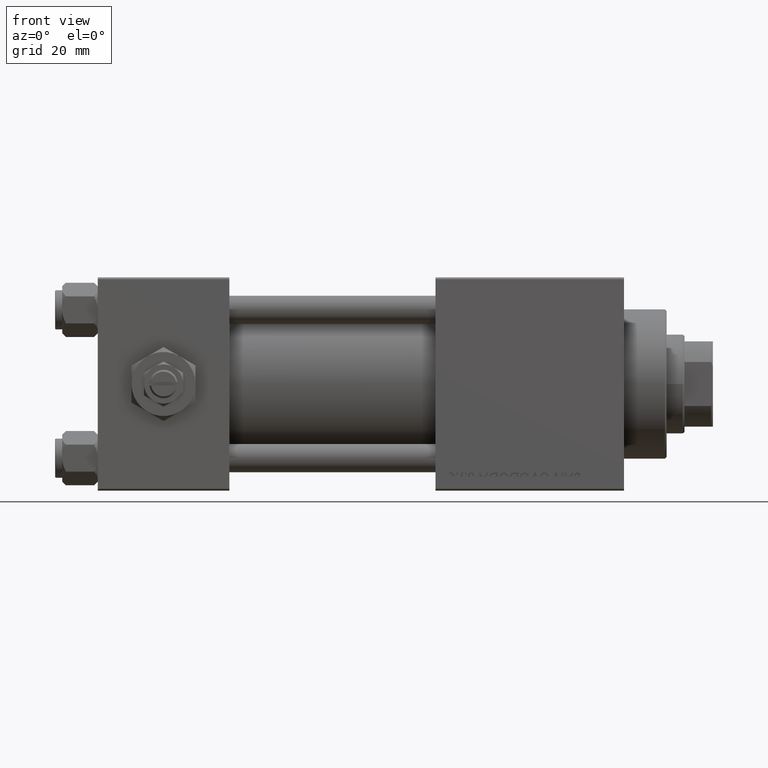
[diagram: clean part render]
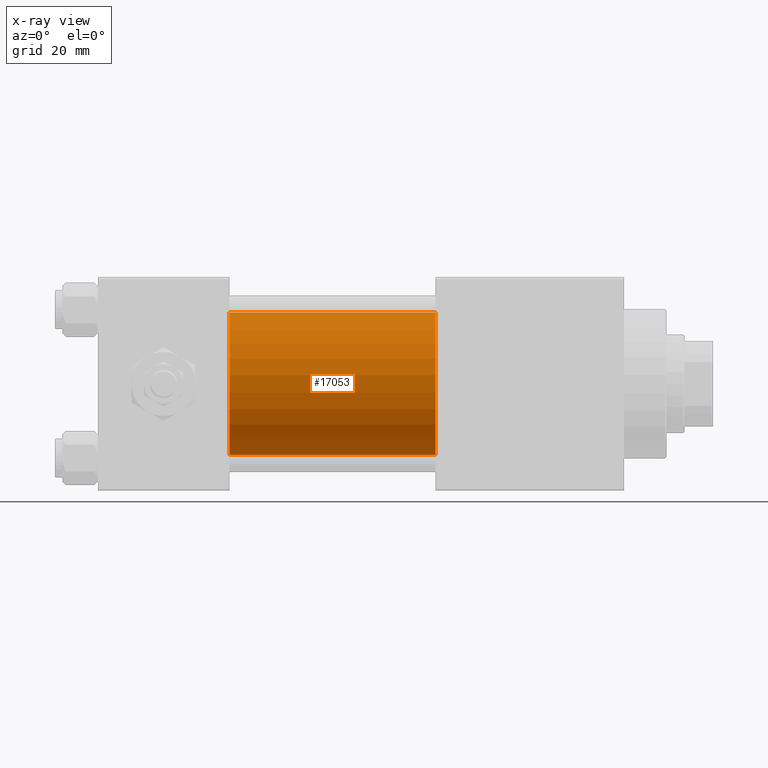
[diagram: x-ray — body ghosted, one internal face saturated and labeled with its STEP entity id]
A machine part, front view, then the same camera in x-ray: the body is ghosted and one INTERNAL B-rep face — a face not visible from any outside direction — is saturated and labeled: STEP entity #17053.
In plain terms, the highlighted cylindrical surface (partial cylindrical patch) has radius 20 mm, axis along (-1, -0, -0).
Its self-contained STEP definition (entity closure, byte-faithful):
#1508 = CARTESIAN_POINT ( 'NONE',  ( 95.00000000000000000, -1.527916156705046464E-16, -20.00000000000000000 ) ) ;
#2756 = DIRECTION ( 'NONE',  ( 0.000000000000000000, 0.000000000000000000, -1.000000000000000000 ) ) ;
#3105 = CARTESIAN_POINT ( 'NONE',  ( 95.00000000000000000, -2.602085213965210642E-15, 0.000000000000000000 ) ) ;
#4491 = DIRECTION ( 'NONE',  ( 0.000000000000000000, 0.000000000000000000, -1.000000000000000000 ) ) ;
#5393 = CIRCLE ( 'NONE', #29699, 20.00000000000000000 ) ;
#9278 = VERTEX_POINT ( 'NONE', #42168 ) ;
#9781 = ORIENTED_EDGE ( 'NONE', *, *, #16120, .F. ) ;
#16120 = EDGE_CURVE ( 'NONE', #23817, #9278, #40197, .T. ) ;
#17053 = ADVANCED_FACE ( 'NONE', ( #51411 ), #23040, .F. ) ;
#18790 = CARTESIAN_POINT ( 'NONE',  ( 95.00000000000000000, -2.602085213965210642E-15, 20.00000000000000000 ) ) ;
#19349 = CARTESIAN_POINT ( 'NONE',  ( 95.00000000000000000, -2.602085213965210642E-15, 20.00000000000000000 ) ) ;
#20911 = AXIS2_PLACEMENT_3D ( 'NONE', #3105, #51669, #39321 ) ;
#23040 = CYLINDRICAL_SURFACE ( 'NONE', #20911, 20.00000000000000000 ) ;
#23817 = VERTEX_POINT ( 'NONE', #35427 ) ;
#25501 = VECTOR ( 'NONE', #43503, 1000.000000000000000 ) ;
#25896 = LINE ( 'NONE', #1508, #31929 ) ;
#26287 = VERTEX_POINT ( 'NONE', #29572 ) ;
#28765 = CARTESIAN_POINT ( 'NONE',  ( 95.00000000000000000, -2.602085213965210642E-15, 0.000000000000000000 ) ) ;
#29572 = CARTESIAN_POINT ( 'NONE',  ( 95.00000000000000000, -1.527916156705046464E-16, -20.00000000000000000 ) ) ;
#29676 = ORIENTED_EDGE ( 'NONE', *, *, #42278, .T. ) ;
#29699 = AXIS2_PLACEMENT_3D ( 'NONE', #28765, #44808, #2756 ) ;
#31929 = VECTOR ( 'NONE', #50071, 1000.000000000000000 ) ;
#35403 = EDGE_CURVE ( 'NONE', #26287, #9278, #25896, .T. ) ;
#35427 = CARTESIAN_POINT ( 'NONE',  ( 37.00000000000000000, -2.602085213965210642E-15, 20.00000000000000000 ) ) ;
#35501 = VERTEX_POINT ( 'NONE', #18790 ) ;
#36122 = LINE ( 'NONE', #19349, #25501 ) ;
#36828 = AXIS2_PLACEMENT_3D ( 'NONE', #40438, #48856, #4491 ) ;
#38424 = ORIENTED_EDGE ( 'NONE', *, *, #35403, .T. ) ;
#39321 = DIRECTION ( 'NONE',  ( 0.000000000000000000, 0.000000000000000000, 1.000000000000000000 ) ) ;
#40197 = CIRCLE ( 'NONE', #36828, 20.00000000000000000 ) ;
#40438 = CARTESIAN_POINT ( 'NONE',  ( 37.00000000000000000, -2.602085213965210642E-15, 0.000000000000000000 ) ) ;
#42109 = EDGE_CURVE ( 'NONE', #35501, #23817, #36122, .T. ) ;
#42168 = CARTESIAN_POINT ( 'NONE',  ( 37.00000000000000000, -1.527916156705046464E-16, -20.00000000000000000 ) ) ;
#42278 = EDGE_CURVE ( 'NONE', #35501, #26287, #5393, .T. ) ;
#43503 = DIRECTION ( 'NONE',  ( -1.000000000000000000, -0.000000000000000000, -0.000000000000000000 ) ) ;
#44808 = DIRECTION ( 'NONE',  ( 1.000000000000000000, 0.000000000000000000, 0.000000000000000000 ) ) ;
#46864 = EDGE_LOOP ( 'NONE', ( #29676, #38424, #9781, #50792 ) ) ;
#48856 = DIRECTION ( 'NONE',  ( 1.000000000000000000, 0.000000000000000000, 0.000000000000000000 ) ) ;
#50071 = DIRECTION ( 'NONE',  ( -1.000000000000000000, -0.000000000000000000, -0.000000000000000000 ) ) ;
#50792 = ORIENTED_EDGE ( 'NONE', *, *, #42109, .F. ) ;
#51411 = FACE_OUTER_BOUND ( 'NONE', #46864, .T. ) ;
#51669 = DIRECTION ( 'NONE',  ( -1.000000000000000000, -0.000000000000000000, -0.000000000000000000 ) ) ;